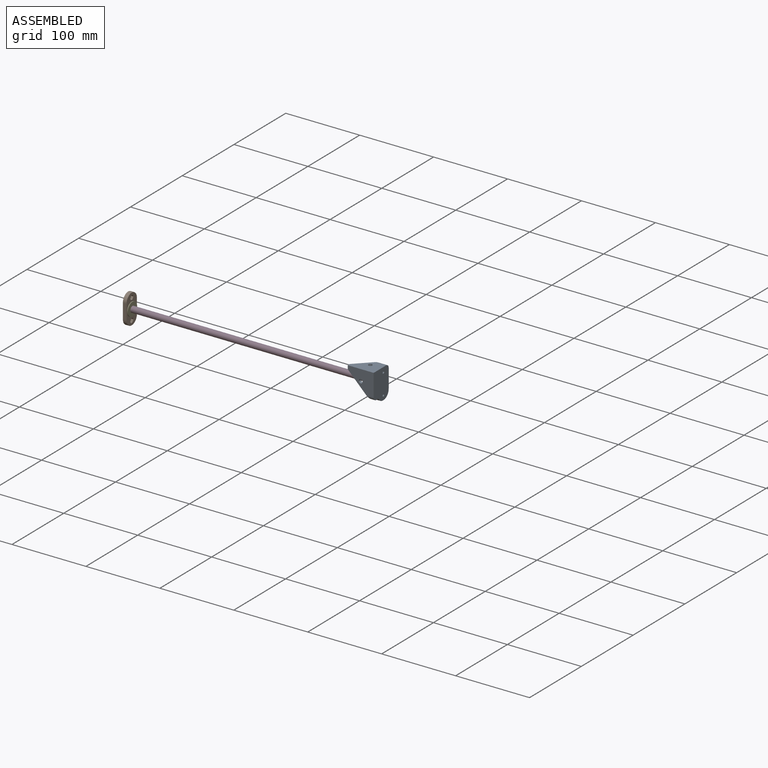
[diagram: assembled view]
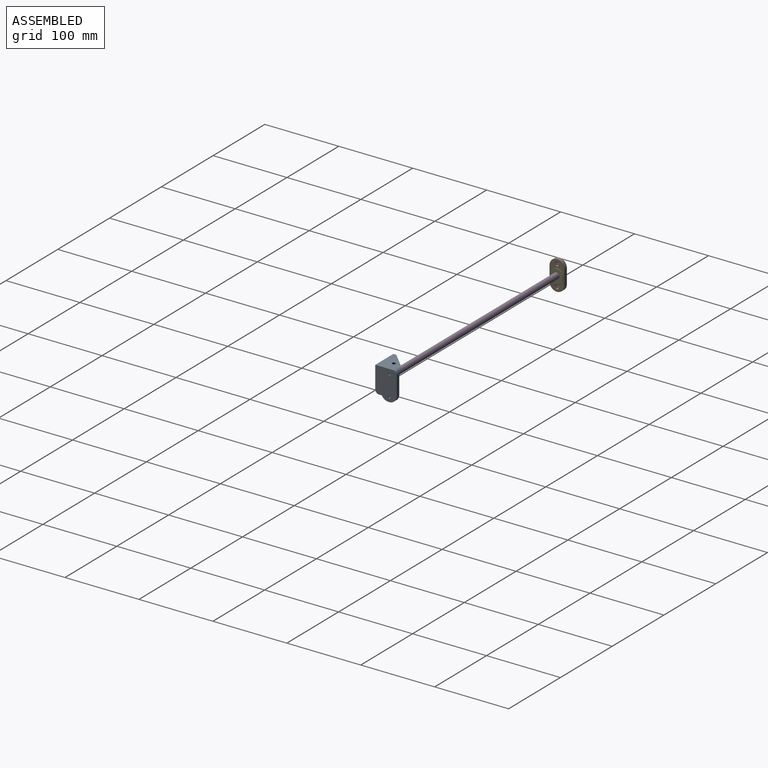
[diagram: assembled view, second angle]
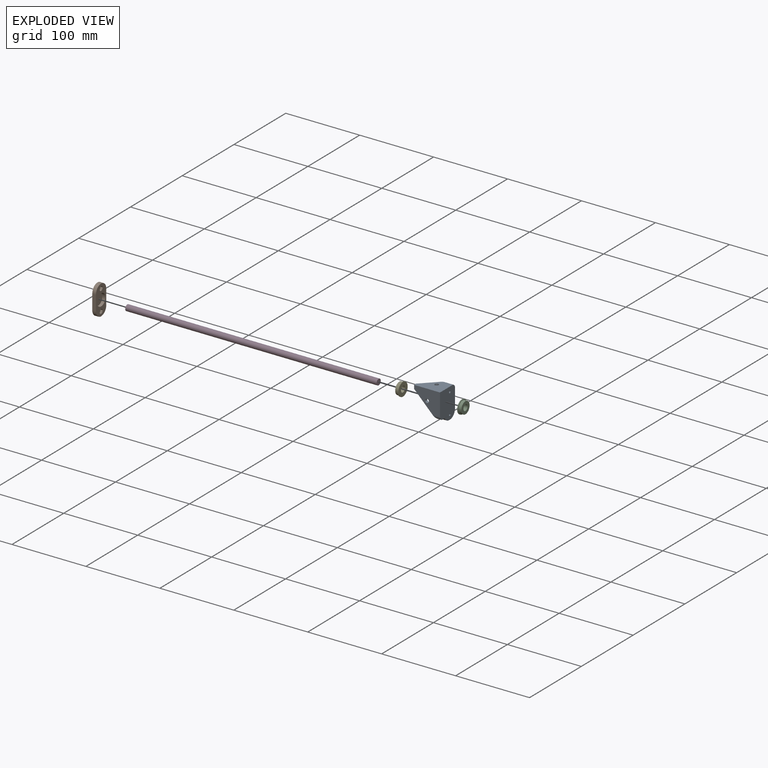
[diagram: exploded view]
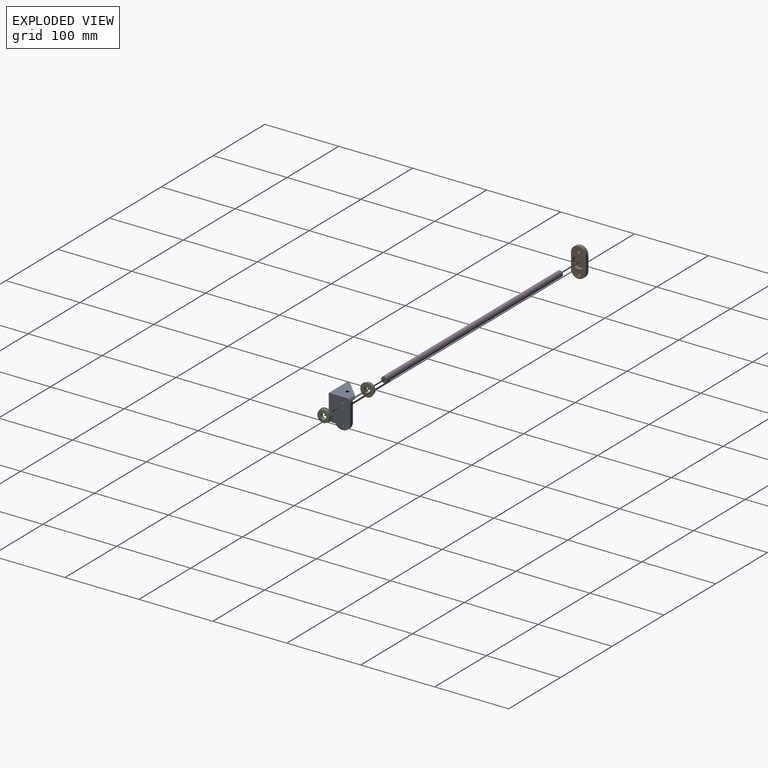
[diagram: exploded view, second angle]
ASSEMBLY  parts=5 mates=2
PART A: 36 faces, bbox 29x40.5x35 mm
  f0: plane 37x25mm, normal (0,0,1), area 598.1mm2, adj f1,f3,f4,f7,f8,f9,f10,f11
  f1: plane 30x24.77mm, normal (0,-1,0), area 416.7mm2, adj f0,f26,f27,f34,f35
  f2: plane 35x24mm, normal (0,1,0), area 620.4mm2, adj f5,f6,f25,f26,f34,f35
  f3: plane 25.5x5mm, normal (-1,0,0), area 127.5mm2, adj f0,f6,f29,f34
  f4: plane 5x1.07mm, normal (0,-1,0), area 5.3mm2, adj f0,f6,f29,f32
  f5: plane 35x30mm, normal (1,0,0), area 717.9mm2, adj f2,f6,f25,f28,f30,f33
  f6: plane 40.5x29mm, normal (0,0,-1), area 1064.7mm2, adj f2,f3,f4,f5,f21,f22,f29,f31
  f7: plane 3x2.85mm, normal (-0.87,-0.5,0), area 9.9mm2, adj f0,f8,f12,f13
  f8: plane 3.29x3mm, normal (0,-1,0), area 9.9mm2, adj f0,f7,f9,f13
  f9: plane 3x2.85mm, normal (0.87,-0.5,0), area 9.9mm2, adj f0,f8,f10,f13
  f10: plane 3x2.85mm, normal (0.87,0.5,0), area 9.9mm2, adj f0,f9,f11,f13
  f11: plane 3.29x3mm, normal (0,1,0), area 9.9mm2, adj f0,f10,f12,f13
  f12: plane 3x2.85mm, normal (-0.87,0.5,0), area 9.9mm2, adj f0,f7,f11,f13
  f13: plane 6.59x5.7mm, normal (0,0,1), area 21.1mm2, adj f7,f8,f9,f10,f11,f12,f22
  f14: plane 3x2.85mm, normal (-0.87,-0.5,0), area 9.9mm2, adj f0,f15,f19,f20
  f15: plane 3.29x3mm, normal (0,-1,0), area 9.9mm2, adj f0,f14,f16,f20
  f16: plane 3x2.85mm, normal (0.87,-0.5,0), area 9.9mm2, adj f0,f15,f17,f20
  f17: plane 3x2.85mm, normal (0.87,0.5,0), area 9.9mm2, adj f0,f16,f18,f20
  f18: plane 3.29x3mm, normal (0,1,0), area 9.9mm2, adj f0,f17,f19,f20
  f19: plane 3x2.85mm, normal (-0.87,0.5,0), area 9.9mm2, adj f0,f14,f18,f20
  f20: plane 6.59x5.7mm, normal (0,0,1), area 21.1mm2, adj f14,f15,f16,f17,f18,f19,f21
  f21: cylinder r=1.5mm len=3mm, axis (0,0,1), area 18.8mm2, adj f6,f20
  f22: cylinder r=1.5mm len=3mm, axis (0,0,1), area 18.8mm2, adj f6,f13
  f23: cylinder r=8.12mm len=16.25mm, axis (0,0,1), area 204.2mm2, adj f0,f24
  f24: plane 16.25x16.25mm, normal (0,0,1), area 207.4mm2, adj f23
  f25: plane 5x4mm, normal (0,0,1), area 20mm2, adj f2,f5,f26,f27,f30
  f26: plane 24.77x24.77mm, normal (-0.71,0,0.71), area 116.3mm2, adj f1,f2,f25,f34
  f27: plane 31.4x30mm, normal (-1,0,0), area 475.4mm2, adj f0,f1,f25,f28,f30,f33
  f28: cylinder r=2.5mm len=5mm, axis (1,0,0), area 62.8mm2, adj f5,f27
  f29: cylinder r=10mm len=10mm, axis (0,0,-1), area 78.5mm2, adj f0,f3,f4,f6
  f30: plane 29.9x29.9mm, normal (0,-0.71,0.71), area 162.2mm2, adj f5,f25,f27,f33
  f31: plane 5x4mm, normal (0,-1,0), area 20mm2, adj f0,f6,f32,f33
  f32: cylinder r=10mm len=8.93mm, axis (0,0,1), area 55.2mm2, adj f0,f4,f6,f31
  f33: cylinder r=5mm len=10mm, axis (0,0,-1), area 53.5mm2, adj f0,f5,f6,f27,f30,f31
  f34: cylinder r=5mm len=15mm, axis (0,0,1), area 85.1mm2, adj f0,f1,f2,f3,f6,f26
  f35: cylinder r=2.5mm len=5mm, axis (0,1,0), area 55mm2, adj f1,f2
PART B: 24 faces, bbox 20x40x5 mm
  f0: plane 20x5mm, normal (1,0,0), area 100mm2, adj f2,f3,f6,f7
  f1: plane 20x5mm, normal (-1,0,0), area 100mm2, adj f2,f3,f6,f7
  f2: plane 40x20mm, normal (0,0,1), area 459.7mm2, adj f0,f1,f4,f6,f7,f8,f9,f10
  f3: plane 40x20mm, normal (0,0,-1), area 700mm2, adj f0,f1,f6,f7,f22,f23
  f4: cylinder r=8mm len=16mm, axis (0,0,1), area 201.1mm2, adj f2,f5
  f5: plane 16x16mm, normal (0,0,1), area 201.1mm2, adj f4
  f6: cylinder r=10mm len=20mm, axis (0,0,-1), area 157.1mm2, adj f0,f1,f2,f3
  f7: cylinder r=10mm len=20mm, axis (0,0,-1), area 157.1mm2, adj f0,f1,f2,f3
  f8: plane 3x2.78mm, normal (0.87,0.5,0), area 9.6mm2, adj f2,f9,f13,f14
  f9: plane 3.2x3mm, normal (0,1,0), area 9.6mm2, adj f2,f8,f10,f14
  f10: plane 3x2.78mm, normal (-0.87,0.5,0), area 9.6mm2, adj f2,f9,f11,f14
  f11: plane 3x2.78mm, normal (-0.87,-0.5,0), area 9.6mm2, adj f2,f10,f12,f14
  f12: plane 3.2x3mm, normal (0,-1,0), area 9.6mm2, adj f2,f11,f13,f14
  f13: plane 3x2.78mm, normal (0.87,-0.5,0), area 9.6mm2, adj f2,f8,f12,f14
  f14: plane 6.41x5.55mm, normal (0,0,1), area 19.6mm2, adj f8,f9,f10,f11,f12,f13,f23
  f15: plane 3x2.78mm, normal (-0.87,-0.5,0), area 9.6mm2, adj f2,f16,f20,f21
  f16: plane 3.2x3mm, normal (0,-1,0), area 9.6mm2, adj f2,f15,f17,f21
  f17: plane 3x2.78mm, normal (0.87,-0.5,0), area 9.6mm2, adj f2,f16,f18,f21
  f18: plane 3x2.78mm, normal (0.87,0.5,0), area 9.6mm2, adj f2,f17,f19,f21
  f19: plane 3.2x3mm, normal (0,1,0), area 9.6mm2, adj f2,f18,f20,f21
  f20: plane 3x2.78mm, normal (-0.87,0.5,0), area 9.6mm2, adj f2,f15,f19,f21
  f21: plane 6.41x5.55mm, normal (0,0,1), area 19.6mm2, adj f15,f16,f17,f18,f19,f20,f22
  f22: cylinder r=1.5mm len=3mm, axis (0,0,1), area 18.8mm2, adj f3,f21
  f23: cylinder r=1.5mm len=3mm, axis (0,0,1), area 18.8mm2, adj f3,f14
PART C: 6 faces, bbox 18x18x5 mm
  f0: cylinder r=9mm len=18mm, axis (0,0,-1), area 62.2mm2, adj f1,f2
  f1: plane 18x18mm, normal (0,0,1), area 53.4mm2, adj f0,f3
  f2: plane 18x18mm, normal (0,0,-1), area 204.2mm2, adj f0,f5
  f3: cylinder r=8mm len=16mm, axis (0,0,-1), area 196mm2, adj f1,f4
  f4: plane 16x16mm, normal (0,0,1), area 150.8mm2, adj f3,f5
  f5: cylinder r=4mm len=8mm, axis (0,0,1), area 125.7mm2, adj f2,f4
PART D: 3 faces, bbox 8x8x340 mm
  f0: cylinder r=4mm len=340mm, axis (0,0,-1), area 8545.1mm2, adj f1,f2
  f1: plane 8x8mm, normal (0,0,1), area 50.3mm2, adj f0
  f2: plane 8x8mm, normal (0,0,-1), area 50.3mm2, adj f0
PART E: same geometry as C
PLACE A rot(axis=(0.58,-0.58,-0.58),120deg) t=(26.47,-70.83,191.75)mm
PLACE B rot(axis=(0.58,0.58,0.58),120deg) t=(-313.53,-70.83,191.75)mm
PLACE C rot(axis=(0,1,0),90deg) t=(20.47,-70.83,191.75)mm
PLACE D rot(axis=(0,1,0),90deg) t=(-314.53,-70.83,191.75)mm
PLACE E rot(axis=(0,-1,0),90deg) t=(-307.53,-70.83,191.75)mm
MATE planar D.f0 <-> C.f5  axis (1,0,0) through (25.47,-70.83,191.75)mm
MATE planar E.f3 <-> B.f4  axis (-1,0,0) through (-312.53,-70.83,191.75)mm
